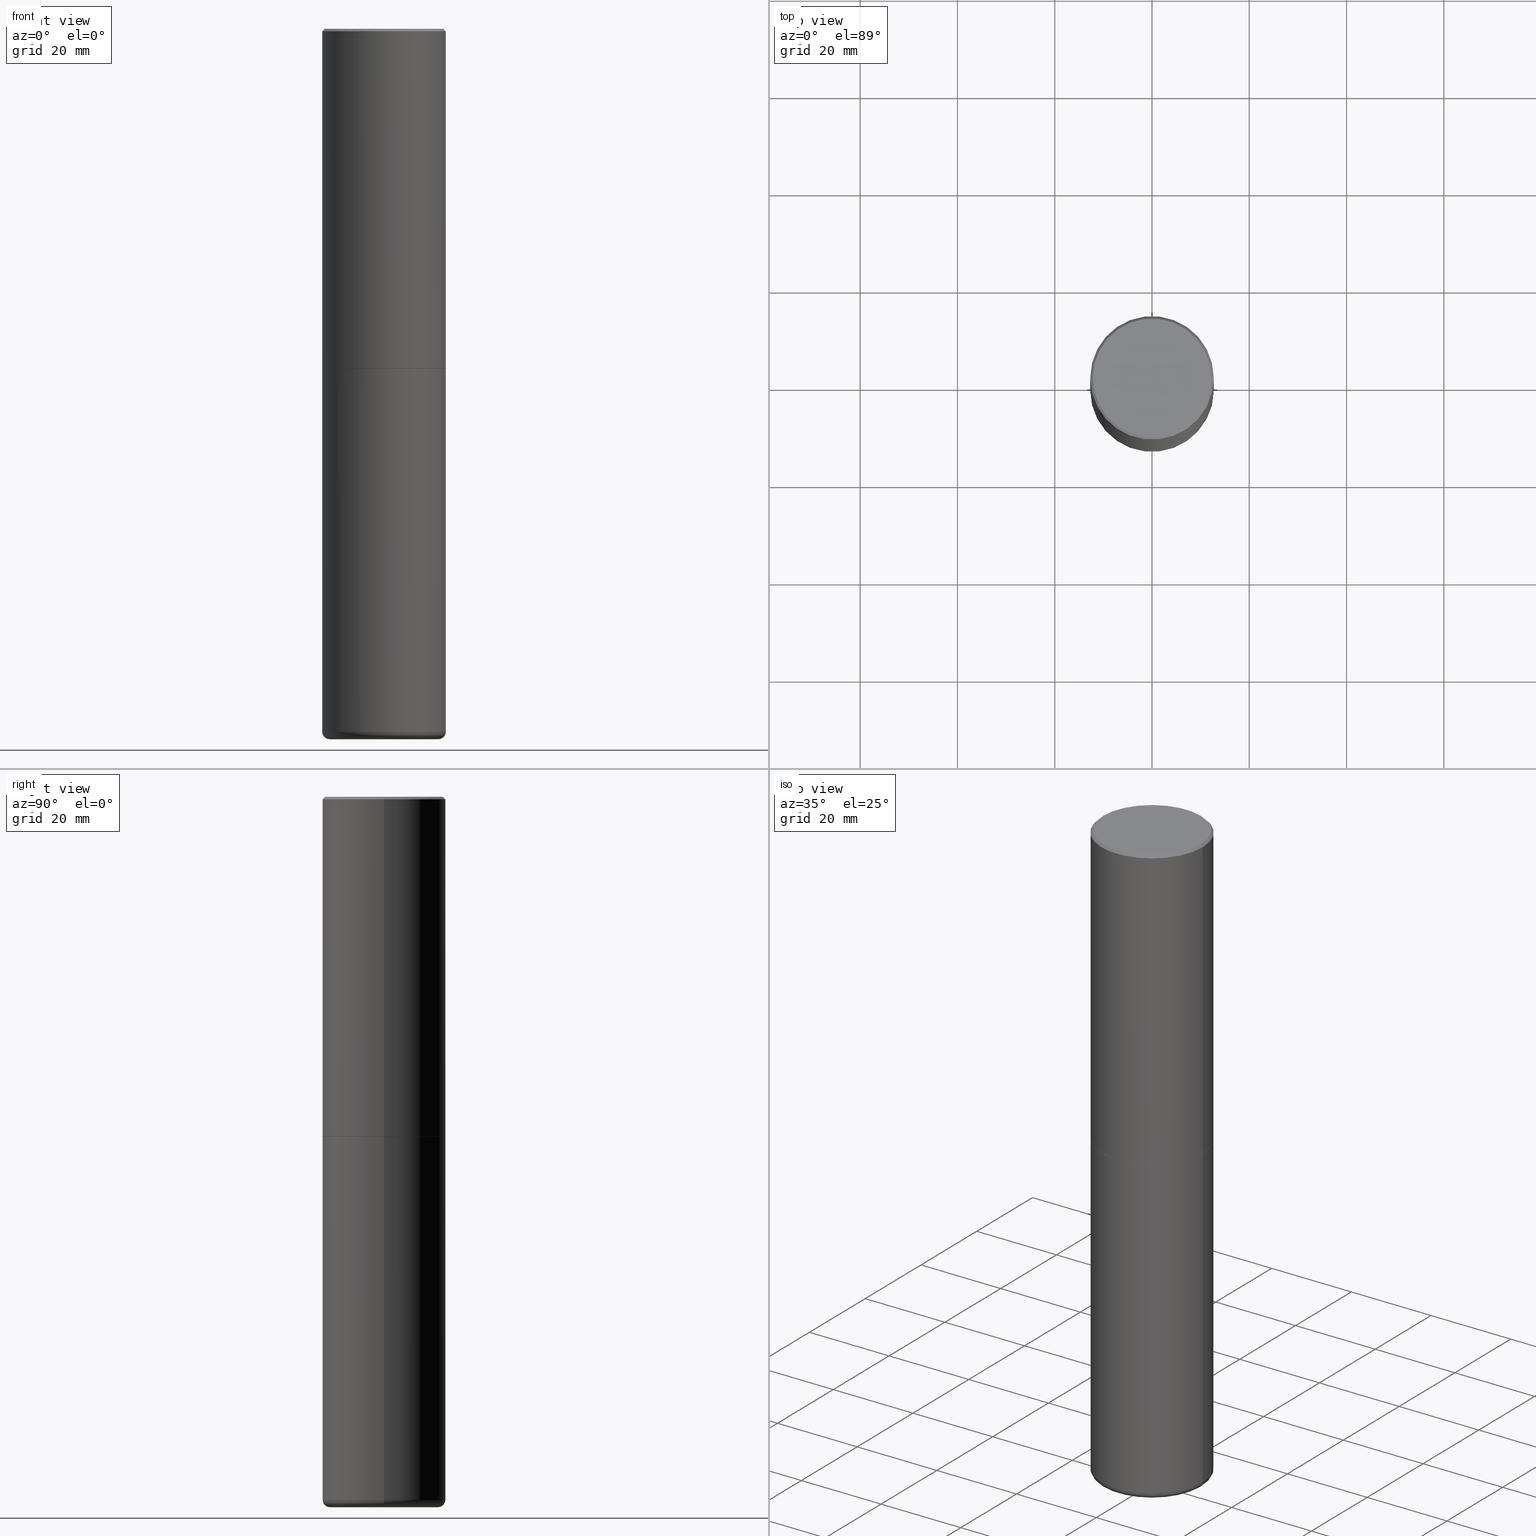
[diagram: canonical four-view strip — front | top / right | iso, engineering-drawing reading convention]
A machine part, canonical four-view strip (front | top / right | iso — engineering-drawing reading convention). The complete STEP part file that produces these views, byte-faithful:
ISO-10303-21;
HEADER;
FILE_DESCRIPTION (( 'STEP AP203' ),
    '1' );
FILE_NAME ('77318.STEP',
    '2024-03-06T17:03:56',
    ( '' ),
    ( '' ),
    'SwSTEP 2.0',
    'SolidWorks 2023',
    '' );
FILE_SCHEMA (( 'CONFIG_CONTROL_DESIGN' ));
ENDSEC;

DATA;
#1 = CALENDAR_DATE ( 2024, 6, 3 ) ;
#2 = EDGE_CURVE ( 'NONE', #50, #18, #135, .T. ) ;
#3 = ORIENTED_EDGE ( 'NONE', *, *, #163, .F. ) ;
#4 = AXIS2_PLACEMENT_3D ( 'NONE', #415, #126, #310 ) ;
#5 = ADVANCED_FACE ( 'NONE', ( #139 ), #133, .T. ) ;
#6 = LOCAL_TIME ( 12, 3, 56.00000000000000000, #253 ) ;
#7 = PERSON ( 'UNSPECIFIED', 'UNSPECIFIED', 'UNSPECIFIED', ('UNSPECIFIED'), ('UNSPECIFIED'), ('UNSPECIFIED') ) ;
#8 = FACE_OUTER_BOUND ( 'NONE', #181, .T. ) ;
#9 = CARTESIAN_POINT ( 'NONE',  ( -0.4799999999999999267, 3.386736898677839197E-15, 1.195183497227879609E-16 ) ) ;
#10 = AXIS2_PLACEMENT_3D ( 'NONE', #413, #316, #28 ) ;
#11 = EDGE_LOOP ( 'NONE', ( #364, #367, #240, #49 ) ) ;
#12 = CARTESIAN_POINT ( 'NONE',  ( 0.000000000000000000, 0.000000000000000000, 0.000000000000000000 ) ) ;
#13 = ORIENTED_EDGE ( 'NONE', *, *, #95, .T. ) ;
#14 = DIRECTION ( 'NONE',  ( -0.7071067811865457964, 2.468850131082238917E-15, -0.7071067811865492381 ) ) ;
#15 = ORIENTED_EDGE ( 'NONE', *, *, #85, .T. ) ;
#16 = CARTESIAN_POINT ( 'NONE',  ( 0.000000000000000000, 0.000000000000000000, 0.000000000000000000 ) ) ;
#17 = DIRECTION ( 'NONE',  ( 1.000000000000000000, -6.982962677686262766E-15, 0.000000000000000000 ) ) ;
#18 = VERTEX_POINT ( 'NONE', #209 ) ;
#19 = CONICAL_SURFACE ( 'NONE', #129, 0.5000000000000001110, 0.7853981633974458365 ) ;
#20 = CC_DESIGN_APPROVAL ( #177, ( #359 ) ) ;
#21 = CARTESIAN_POINT ( 'NONE',  ( 6.725039217009123399E-29, -9.601573681818648281E-15, -2.749999999999999556 ) ) ;
#22 = ORIENTED_EDGE ( 'NONE', *, *, #161, .T. ) ;
#23 = DIRECTION ( 'NONE',  ( 2.438088387897960049E-29, -3.491481338843145188E-15, -1.000000000000000000 ) ) ;
#24 = LINE ( 'NONE', #239, #345 ) ;
#25 = PLANE ( 'NONE',  #160 ) ;
#26 = CC_DESIGN_PERSON_AND_ORGANIZATION_ASSIGNMENT ( #416, #97, ( #359 ) ) ;
#27 = AXIS2_PLACEMENT_3D ( 'NONE', #70, #270, #401 ) ;
#28 = DIRECTION ( 'NONE',  ( 1.000000000000000000, -6.982962677686280121E-15, 0.000000000000000000 ) ) ;
#29 = CIRCLE ( 'NONE', #27, 0.4989999999999999991 ) ;
#30 = DATE_AND_TIME ( #1, #255 ) ;
#31 = DIMENSIONAL_EXPONENTS ( 1.000000000000000000, 0.000000000000000000, 0.000000000000000000, 0.000000000000000000, 0.000000000000000000, 0.000000000000000000, 0.000000000000000000 ) ;
#32 = DIRECTION ( 'NONE',  ( -2.445468806185136877E-29, 3.491481338843145188E-15, 1.000000000000000000 ) ) ;
#33 = CALENDAR_DATE ( 2024, 6, 3 ) ;
#34 = VERTEX_POINT ( 'NONE', #363 ) ;
#35 = COORDINATED_UNIVERSAL_TIME_OFFSET ( 5, 0, .BEHIND. ) ;
#36 = CC_DESIGN_PERSON_AND_ORGANIZATION_ASSIGNMENT ( #355, #125, ( #130 ) ) ;
#37 = AXIS2_PLACEMENT_3D ( 'NONE', #88, #216, #366 ) ;
#38 = EDGE_CURVE ( 'NONE', #377, #120, #109, .T. ) ;
#39 = EDGE_CURVE ( 'NONE', #120, #331, #227, .T. ) ;
#40 = PRODUCT ( '77318', '77318', '', ( #268 ) ) ;
#41 =( GEOMETRIC_REPRESENTATION_CONTEXT ( 3 ) GLOBAL_UNCERTAINTY_ASSIGNED_CONTEXT ( ( #361 ) ) GLOBAL_UNIT_ASSIGNED_CONTEXT ( ( #210, #183, #277 ) ) REPRESENTATION_CONTEXT ( 'NONE', 'WORKASPACE' ) );
#42 = CARTESIAN_POINT ( 'NONE',  ( -0.5000000000000003331, -1.281242234827830793E-15, -2.748999999999999666 ) ) ;
#43 = VERTEX_POINT ( 'NONE', #205 ) ;
#44 = CIRCLE ( 'NONE', #104, 0.4400000000000000022 ) ;
#45 = ORIENTED_EDGE ( 'NONE', *, *, #158, .T. ) ;
#46 = AXIS2_PLACEMENT_3D ( 'NONE', #16, #275, #131 ) ;
#47 = APPLICATION_CONTEXT ( 'configuration controlled 3d designs of mechanical parts and assemblies' ) ;
#48 = DIRECTION ( 'NONE',  ( 1.000000000000000000, -6.982962677686264344E-15, 4.883557194083111780E-29 ) ) ;
#49 = ORIENTED_EDGE ( 'NONE', *, *, #326, .F. ) ;
#50 = VERTEX_POINT ( 'NONE', #9 ) ;
#51 = APPROVAL_DATE_TIME ( #343, #228 ) ;
#52 = ORIENTED_EDGE ( 'NONE', *, *, #95, .F. ) ;
#53 = DIRECTION ( 'NONE',  ( 1.000000000000000000, -6.982962677686264344E-15, 4.883557194083111780E-29 ) ) ;
#54 = CARTESIAN_POINT ( 'NONE',  ( 6.725039217009123399E-29, -9.601573681818648281E-15, -2.749999999999999556 ) ) ;
#55 = ORIENTED_EDGE ( 'NONE', *, *, #163, .T. ) ;
#56 = DIRECTION ( 'NONE',  ( 1.000000000000000000, -6.982962677686269077E-15, 0.000000000000000000 ) ) ;
#57 = DIRECTION ( 'NONE',  ( 1.000000000000000000, -6.982962677686269077E-15, 0.000000000000000000 ) ) ;
#58 = CARTESIAN_POINT ( 'NONE',  ( -0.5000000000000001110, 3.421651712066270452E-15, -0.02000000000000010797 ) ) ;
#59 = DIRECTION ( 'NONE',  ( -1.000000000000000000, 6.982962677686265922E-15, 0.000000000000000000 ) ) ;
#60 = CONICAL_SURFACE ( 'NONE', #390, 0.4989999999999999991, 0.7853981633977213939 ) ;
#61 = CARTESIAN_POINT ( 'NONE',  ( 6.725039217009123399E-29, -9.601573681818648281E-15, -2.749999999999999556 ) ) ;
#62 = APPROVAL_DATE_TIME ( #30, #177 ) ;
#63 = FACE_OUTER_BOUND ( 'NONE', #138, .T. ) ;
#64 = CALENDAR_DATE ( 2024, 6, 3 ) ;
#65 = ADVANCED_FACE ( 'NONE', ( #164 ), #143, .T. ) ;
#66 = ADVANCED_FACE ( 'NONE', ( #8 ), #266, .T. ) ;
#67 = AXIS2_PLACEMENT_3D ( 'NONE', #412, #225, #87 ) ;
#68 = ADVANCED_FACE ( 'NONE', ( #178 ), #295, .T. ) ;
#69 = APPROVAL_PERSON_ORGANIZATION ( #318, #378, #321 ) ;
#70 = CARTESIAN_POINT ( 'NONE',  ( 6.725039217009123399E-29, -9.601573681818648281E-15, -2.749999999999999556 ) ) ;
#71 = VERTEX_POINT ( 'NONE', #171 ) ;
#72 = LINE ( 'NONE', #201, #195 ) ;
#73 = FACE_OUTER_BOUND ( 'NONE', #79, .T. ) ;
#74 = ORIENTED_EDGE ( 'NONE', *, *, #326, .T. ) ;
#75 = DIRECTION ( 'NONE',  ( -2.445468806185136597E-29, 3.491481338843145583E-15, 1.000000000000000000 ) ) ;
#76 = AXIS2_PLACEMENT_3D ( 'NONE', #398, #374, #339 ) ;
#77 = APPROVAL_STATUS ( 'not_yet_approved' ) ;
#78 = AXIS2_PLACEMENT_3D ( 'NONE', #121, #118, #383 ) ;
#79 = EDGE_LOOP ( 'NONE', ( #146, #192, #117, #242 ) ) ;
#80 = MANIFOLD_SOLID_BREP ( 'Body-Move/Copy2[2]', #360 ) ;
#81 = EDGE_LOOP ( 'NONE', ( #3, #311, #141, #52 ) ) ;
#82 = PERSON_AND_ORGANIZATION_ROLE ( 'design_owner' ) ;
#83 = ORIENTED_EDGE ( 'NONE', *, *, #397, .F. ) ;
#84 = CARTESIAN_POINT ( 'NONE',  ( 1.391471750719342616E-28, -1.986652881801749632E-14, -5.689999999999999503 ) ) ;
#85 = EDGE_CURVE ( 'NONE', #377, #282, #29, .T. ) ;
#86 = ORIENTED_EDGE ( 'NONE', *, *, #176, .T. ) ;
#87 = DIRECTION ( 'NONE',  ( 1.000000000000000000, -6.982962677686265922E-15, 0.000000000000000000 ) ) ;
#88 = CARTESIAN_POINT ( 'NONE',  ( 0.000000000000000000, 0.000000000000000000, 0.000000000000000000 ) ) ;
#89 = LOCAL_TIME ( 12, 3, 56.00000000000000000, #340 ) ;
#90 = DIRECTION ( 'NONE',  ( 1.000000000000000000, -6.982962677686266711E-15, 4.874852205035277589E-29 ) ) ;
#91 = DATE_AND_TIME ( #33, #6 ) ;
#92 = VERTEX_POINT ( 'NONE', #302 ) ;
#93 = CARTESIAN_POINT ( 'NONE',  ( -0.5000000000000002220, 3.552713678800502507E-15, -2.459467545127454012E-29 ) ) ;
#94 = DIRECTION ( 'NONE',  ( 1.000000000000000000, -6.982962677686266711E-15, 0.000000000000000000 ) ) ;
#95 = EDGE_CURVE ( 'NONE', #50, #278, #238, .T. ) ;
#96 = PLANE ( 'NONE',  #335 ) ;
#97 = PERSON_AND_ORGANIZATION_ROLE ( 'design_supplier' ) ;
#98 = VECTOR ( 'NONE', #233, 39.37007874015748143 ) ;
#99 = AXIS2_PLACEMENT_3D ( 'NONE', #144, #407, #399 ) ;
#100 = FACE_OUTER_BOUND ( 'NONE', #338, .T. ) ;
#101 = VECTOR ( 'NONE', #379, 39.37007874015748143 ) ;
#102 = CC_DESIGN_APPROVAL ( #228, ( #409 ) ) ;
#103 = DIRECTION ( 'NONE',  ( -2.445468806185136877E-29, 3.491481338843145188E-15, 1.000000000000000000 ) ) ;
#104 = AXIS2_PLACEMENT_3D ( 'NONE', #337, #271, #180 ) ;
#105 = CARTESIAN_POINT ( 'NONE',  ( -0.4989999999999999991, -6.055965430375748360E-15, -2.749999999999999556 ) ) ;
#106 = CARTESIAN_POINT ( 'NONE',  ( 1.406144563556453767E-28, -2.007601769834809252E-14, -5.750000000000000888 ) ) ;
#107 = EDGE_LOOP ( 'NONE', ( #149, #344, #13, #86 ) ) ;
#108 = ADVANCED_FACE ( 'NONE', ( #116 ), #328, .T. ) ;
#109 = LINE ( 'NONE', #105, #98 ) ;
#110 = PERSON_AND_ORGANIZATION ( #7, #394 ) ;
#111 = VERTEX_POINT ( 'NONE', #330 ) ;
#112 = DIRECTION ( 'NONE',  ( -2.445468806185136597E-29, 3.491481338843145583E-15, 1.000000000000000000 ) ) ;
#113 = CARTESIAN_POINT ( 'NONE',  ( 6.725039217009123399E-29, -9.601573681818648281E-15, -2.749999999999999556 ) ) ;
#114 = AXIS2_PLACEMENT_3D ( 'NONE', #61, #387, #94 ) ;
#115 = EDGE_LOOP ( 'NONE', ( #184, #333, #22, #200 ) ) ;
#116 = FACE_OUTER_BOUND ( 'NONE', #307, .T. ) ;
#117 = ORIENTED_EDGE ( 'NONE', *, *, #322, .F. ) ;
#118 = DIRECTION ( 'NONE',  ( -2.445468806185136597E-29, 3.491481338843145583E-15, 1.000000000000000000 ) ) ;
#119 = DIRECTION ( 'NONE',  ( 1.000000000000000000, -6.982962677686269077E-15, 0.000000000000000000 ) ) ;
#120 = VERTEX_POINT ( 'NONE', #42 ) ;
#121 = CARTESIAN_POINT ( 'NONE',  ( 4.890937612370299433E-31, -6.982962677686328587E-17, -0.02000000000000010797 ) ) ;
#122 = DATE_TIME_ROLE ( 'classification_date' ) ;
#123 = FACE_OUTER_BOUND ( 'NONE', #269, .T. ) ;
#124 = DIRECTION ( 'NONE',  ( -1.000000000000000000, 6.982962677686265922E-15, 0.000000000000000000 ) ) ;
#125 = PERSON_AND_ORGANIZATION_ROLE ( 'classification_officer' ) ;
#126 = DIRECTION ( 'NONE',  ( -2.445468806185136597E-29, 3.491481338843145583E-15, 1.000000000000000000 ) ) ;
#127 = AXIS2_PLACEMENT_3D ( 'NONE', #262, #258, #142 ) ;
#128 = PRODUCT_RELATED_PRODUCT_CATEGORY ( 'detail', '', ( #40 ) ) ;
#129 = AXIS2_PLACEMENT_3D ( 'NONE', #150, #248, #59 ) ;
#130 = SECURITY_CLASSIFICATION ( '', '', #382 ) ;
#131 = DIRECTION ( 'NONE',  ( 1.000000000000000000, -6.982962677686266711E-15, 4.876176775795935793E-29 ) ) ;
#132 = CIRCLE ( 'NONE', #145, 0.4400000000000000022 ) ;
#133 = CYLINDRICAL_SURFACE ( 'NONE', #46, 0.5000000000000002220 ) ;
#134 = ADVANCED_FACE ( 'NONE', ( #298 ), #371, .T. ) ;
#135 = CIRCLE ( 'NONE', #76, 0.4799999999999999267 ) ;
#136 = EDGE_LOOP ( 'NONE', ( #272, #251, #188, #173 ) ) ;
#137 = ORIENTED_EDGE ( 'NONE', *, *, #325, .T. ) ;
#138 = EDGE_LOOP ( 'NONE', ( #175, #15, #45, #235 ) ) ;
#139 = FACE_OUTER_BOUND ( 'NONE', #115, .T. ) ;
#140 = CALENDAR_DATE ( 2024, 6, 3 ) ;
#141 = ORIENTED_EDGE ( 'NONE', *, *, #196, .T. ) ;
#142 = DIRECTION ( 'NONE',  ( 1.000000000000000000, -6.982962677686266711E-15, 0.000000000000000000 ) ) ;
#143 = CYLINDRICAL_SURFACE ( 'NONE', #224, 0.5000000000000000000 ) ;
#144 = CARTESIAN_POINT ( 'NONE',  ( 0.000000000000000000, 0.000000000000000000, 0.000000000000000000 ) ) ;
#145 = AXIS2_PLACEMENT_3D ( 'NONE', #106, #303, #17 ) ;
#146 = ORIENTED_EDGE ( 'NONE', *, *, #392, .T. ) ;
#147 = DIRECTION ( 'NONE',  ( -2.445468806185136597E-29, 3.491481338843145583E-15, 1.000000000000000000 ) ) ;
#148 = CARTESIAN_POINT ( 'NONE',  ( -0.4989999999999999991, -6.050666976027525169E-15, -2.749999999999999556 ) ) ;
#149 = ORIENTED_EDGE ( 'NONE', *, *, #393, .F. ) ;
#150 = CARTESIAN_POINT ( 'NONE',  ( 4.890937612370299433E-31, -6.982962677686328587E-17, -0.02000000000000010797 ) ) ;
#151 = DIRECTION ( 'NONE',  ( -2.445468806185136597E-29, 3.491481338843145583E-15, 1.000000000000000000 ) ) ;
#152 = CARTESIAN_POINT ( 'NONE',  ( 0.4989999999999999991, -1.308607205798409720E-14, -2.749999999999999556 ) ) ;
#153 = APPROVAL_DATE_TIME ( #389, #378 ) ;
#154 = AXIS2_PLACEMENT_3D ( 'NONE', #352, #147, #90 ) ;
#155 = CARTESIAN_POINT ( 'NONE',  ( 1.391471750719342616E-28, -1.986652881801749632E-14, -5.689999999999999503 ) ) ;
#156 = DIRECTION ( 'NONE',  ( 0.7071067811867406405, -2.468850131084279700E-15, 0.7071067811863543939 ) ) ;
#157 = DATE_AND_TIME ( #159, #206 ) ;
#158 = EDGE_CURVE ( 'NONE', #282, #331, #72, .T. ) ;
#159 = CALENDAR_DATE ( 2024, 6, 3 ) ;
#160 = AXIS2_PLACEMENT_3D ( 'NONE', #246, #381, #217 ) ;
#161 = EDGE_CURVE ( 'NONE', #331, #211, #190, .T. ) ;
#162 = CC_DESIGN_SECURITY_CLASSIFICATION ( #130, ( #359 ) ) ;
#163 = EDGE_CURVE ( 'NONE', #18, #50, #237, .T. ) ;
#164 = FACE_OUTER_BOUND ( 'NONE', #11, .T. ) ;
#165 = ORIENTED_EDGE ( 'NONE', *, *, #191, .F. ) ;
#166 = CIRCLE ( 'NONE', #229, 0.4989999999999999991 ) ;
#167 = DIRECTION ( 'NONE',  ( 2.438088387897960049E-29, -3.491481338843145188E-15, -1.000000000000000000 ) ) ;
#168 = CYLINDRICAL_SURFACE ( 'NONE', #99, 0.5000000000000000000 ) ;
#169 = ORIENTED_EDGE ( 'NONE', *, *, #356, .T. ) ;
#170 = CC_DESIGN_DATE_AND_TIME_ASSIGNMENT ( #157, #122, ( #130 ) ) ;
#171 = CARTESIAN_POINT ( 'NONE',  ( 0.4400000000000000022, -2.314852127653004609E-14, -5.750000000000000888 ) ) ;
#172 = DIRECTION ( 'NONE',  ( 0.7071067811865457964, -7.319954787623249734E-15, -0.7071067811865492381 ) ) ;
#173 = ORIENTED_EDGE ( 'NONE', *, *, #289, .F. ) ;
#174 = PERSON_AND_ORGANIZATION ( #7, #394 ) ;
#175 = ORIENTED_EDGE ( 'NONE', *, *, #38, .F. ) ;
#176 = EDGE_CURVE ( 'NONE', #278, #211, #215, .T. ) ;
#177 = APPROVAL ( #218, 'UNSPECIFIED' ) ;
#178 = FACE_OUTER_BOUND ( 'NONE', #136, .T. ) ;
#179 = CIRCLE ( 'NONE', #189, 0.4999999999999999445 ) ;
#180 = DIRECTION ( 'NONE',  ( 1.000000000000000000, -6.982962677686262766E-15, 0.000000000000000000 ) ) ;
#181 = EDGE_LOOP ( 'NONE', ( #208, #137, #408, #204 ) ) ;
#182 = PLANE ( 'NONE',  #247 ) ;
#183 =( NAMED_UNIT ( * ) PLANE_ANGLE_UNIT ( ) SI_UNIT ( $, .RADIAN. ) );
#184 = ORIENTED_EDGE ( 'NONE', *, *, #325, .F. ) ;
#185 = CARTESIAN_POINT ( 'NONE',  ( 0.5000000000000001110, -3.500078625662629868E-15, -0.02000000000000010797 ) ) ;
#186 = FACE_OUTER_BOUND ( 'NONE', #107, .T. ) ;
#187 = APPROVAL_STATUS ( 'not_yet_approved' ) ;
#188 = ORIENTED_EDGE ( 'NONE', *, *, #356, .F. ) ;
#189 = AXIS2_PLACEMENT_3D ( 'NONE', #155, #385, #320 ) ;
#190 = LINE ( 'NONE', #252, #274 ) ;
#191 = EDGE_CURVE ( 'NONE', #111, #92, #410, .T. ) ;
#192 = ORIENTED_EDGE ( 'NONE', *, *, #38, .T. ) ;
#193 = ADVANCED_FACE ( 'NONE', ( #100 ), #96, .F. ) ;
#194 = ADVANCED_BREP_SHAPE_REPRESENTATION ( '77318', ( #334, #80, #37 ), #41 ) ;
#195 = VECTOR ( 'NONE', #156, 39.37007874015748143 ) ;
#196 = EDGE_CURVE ( 'NONE', #211, #278, #317, .T. ) ;
#197 = ADVANCED_FACE ( 'NONE', ( #63 ), #60, .T. ) ;
#198 = VECTOR ( 'NONE', #32, 39.37007874015748143 ) ;
#199 = CARTESIAN_POINT ( 'NONE',  ( -0.5000000000000001110, 3.421651712066270452E-15, -0.02000000000000010797 ) ) ;
#200 = ORIENTED_EDGE ( 'NONE', *, *, #176, .F. ) ;
#201 = CARTESIAN_POINT ( 'NONE',  ( 0.4989999999999999991, -1.308607205798409720E-14, -2.749999999999999556 ) ) ;
#202 = CC_DESIGN_PERSON_AND_ORGANIZATION_ASSIGNMENT ( #285, #323, ( #359 ) ) ;
#203 = DIRECTION ( 'NONE',  ( -2.445468806185136597E-29, 3.491481338843145583E-15, 1.000000000000000000 ) ) ;
#204 = ORIENTED_EDGE ( 'NONE', *, *, #161, .F. ) ;
#205 = CARTESIAN_POINT ( 'NONE',  ( -0.5000000000000000000, -1.118133757111757137E-14, -2.749999999999999556 ) ) ;
#206 = LOCAL_TIME ( 12, 3, 56.00000000000000000, #35 ) ;
#207 = APPROVAL_ROLE ( '' ) ;
#208 = ORIENTED_EDGE ( 'NONE', *, *, #322, .T. ) ;
#209 = CARTESIAN_POINT ( 'NONE',  ( 0.4799999999999999267, -3.396558832296482099E-15, 1.195183497228351200E-16 ) ) ;
#210 =( CONVERSION_BASED_UNIT ( 'INCH', #372 ) LENGTH_UNIT ( ) NAMED_UNIT ( #31 ) );
#211 = VERTEX_POINT ( 'NONE', #185 ) ;
#212 = DIRECTION ( 'NONE',  ( 1.000000000000000000, -6.982962677686266711E-15, 4.876176775795935793E-29 ) ) ;
#213 = ORIENTED_EDGE ( 'NONE', *, *, #304, .F. ) ;
#214 = CARTESIAN_POINT ( 'NONE',  ( 6.725039217009123399E-29, -9.601573681818648281E-15, -2.749999999999999556 ) ) ;
#215 = CIRCLE ( 'NONE', #78, 0.5000000000000001110 ) ;
#216 = DIRECTION ( 'NONE',  ( 0.000000000000000000, 0.000000000000000000, 1.000000000000000000 ) ) ;
#217 = DIRECTION ( 'NONE',  ( -1.000000000000000000, 6.982962677686265922E-15, -4.876176775795935793E-29 ) ) ;
#218 = APPROVAL_STATUS ( 'not_yet_approved' ) ;
#219 = CARTESIAN_POINT ( 'NONE',  ( 0.5000000000000000000, -3.491481338843133355E-15, 2.438088387897967896E-29 ) ) ;
#220 = PERSON_AND_ORGANIZATION ( #7, #394 ) ;
#221 = FACE_OUTER_BOUND ( 'NONE', #369, .T. ) ;
#222 = PERSON_AND_ORGANIZATION_ROLE ( 'creator' ) ;
#223 = EDGE_CURVE ( 'NONE', #34, #43, #284, .T. ) ;
#224 = AXIS2_PLACEMENT_3D ( 'NONE', #332, #112, #212 ) ;
#225 = DIRECTION ( 'NONE',  ( -2.445468806185136597E-29, 3.491481338843145583E-15, 1.000000000000000000 ) ) ;
#226 = AXIS2_PLACEMENT_3D ( 'NONE', #306, #151, #402 ) ;
#227 = CIRCLE ( 'NONE', #236, 0.5000000000000003331 ) ;
#228 = APPROVAL ( #77, 'UNSPECIFIED' ) ;
#229 = AXIS2_PLACEMENT_3D ( 'NONE', #113, #280, #57 ) ;
#230 = DIRECTION ( 'NONE',  ( -2.445468806185136597E-29, 3.491481338843145583E-15, 1.000000000000000000 ) ) ;
#231 = CARTESIAN_POINT ( 'NONE',  ( 4.089694968291764333E-29, -3.435613221068401065E-14, -5.750000000000000888 ) ) ;
#232 = EDGE_LOOP ( 'NONE', ( #403, #83 ) ) ;
#233 = DIRECTION ( 'NONE',  ( -0.7071067811867406405, 7.493145998871051513E-15, 0.7071067811863543939 ) ) ;
#234 = APPLICATION_PROTOCOL_DEFINITION ( 'international standard', 'config_control_design', 1994, #357 ) ;
#235 = ORIENTED_EDGE ( 'NONE', *, *, #39, .F. ) ;
#236 = AXIS2_PLACEMENT_3D ( 'NONE', #264, #230, #336 ) ;
#237 = CIRCLE ( 'NONE', #154, 0.4799999999999999267 ) ;
#238 = LINE ( 'NONE', #199, #260 ) ;
#239 = CARTESIAN_POINT ( 'NONE',  ( 0.5000000000000001110, -3.500078625662629868E-15, -0.02000000000000010797 ) ) ;
#240 = ORIENTED_EDGE ( 'NONE', *, *, #191, .T. ) ;
#241 = CARTESIAN_POINT ( 'NONE',  ( 1.391471750719342616E-28, -1.986652881801749632E-14, -5.689999999999999503 ) ) ;
#242 = ORIENTED_EDGE ( 'NONE', *, *, #158, .F. ) ;
#243 = DIRECTION ( 'NONE',  ( -2.438088387897960049E-29, 3.491481338843145188E-15, 1.000000000000000000 ) ) ;
#244 =( LENGTH_UNIT ( ) NAMED_UNIT ( * ) SI_UNIT ( $, .METRE. ) );
#245 = ADVANCED_FACE ( 'NONE', ( #123 ), #182, .F. ) ;
#246 = CARTESIAN_POINT ( 'NONE',  ( 3.351822085289407153E-15, 0.4799999999999999267, -1.616151867783303914E-15 ) ) ;
#247 = AXIS2_PLACEMENT_3D ( 'NONE', #312, #23, #350 ) ;
#248 = DIRECTION ( 'NONE',  ( 2.445468806185136597E-29, -3.491481338843145583E-15, -1.000000000000000000 ) ) ;
#249 = APPROVAL_ROLE ( '' ) ;
#250 = DIRECTION ( 'NONE',  ( -1.000000000000000000, 7.105427357601001859E-15, 0.000000000000000000 ) ) ;
#251 = ORIENTED_EDGE ( 'NONE', *, *, #283, .T. ) ;
#252 = CARTESIAN_POINT ( 'NONE',  ( 0.5000000000000002220, -3.491481338843134933E-15, 2.438088387897969017E-29 ) ) ;
#253 = COORDINATED_UNIVERSAL_TIME_OFFSET ( 5, 0, .BEHIND. ) ;
#254 = VECTOR ( 'NONE', #103, 39.37007874015748143 ) ;
#255 = LOCAL_TIME ( 12, 3, 56.00000000000000000, #351 ) ;
#256 = CC_DESIGN_PERSON_AND_ORGANIZATION_ASSIGNMENT ( #174, #222, ( #409 ) ) ;
#257 = CC_DESIGN_PERSON_AND_ORGANIZATION_ASSIGNMENT ( #110, #82, ( #40 ) ) ;
#258 = DIRECTION ( 'NONE',  ( -2.445468806185136597E-29, 3.491481338843145583E-15, 1.000000000000000000 ) ) ;
#259 = ADVANCED_FACE ( 'NONE', ( #314 ), #19, .T. ) ;
#260 = VECTOR ( 'NONE', #14, 39.37007874015748143 ) ;
#261 = ADVANCED_FACE ( 'NONE', ( #221 ), #25, .F. ) ;
#262 = CARTESIAN_POINT ( 'NONE',  ( 6.725039217009123399E-29, -9.601573681818648281E-15, -2.749999999999999556 ) ) ;
#263 = ADVANCED_FACE ( 'NONE', ( #186 ), #308, .T. ) ;
#264 = CARTESIAN_POINT ( 'NONE',  ( 6.722593748202938917E-29, -9.598082200479805274E-15, -2.748999999999999666 ) ) ;
#265 = AXIS2_PLACEMENT_3D ( 'NONE', #231, #167, #365 ) ;
#266 = CYLINDRICAL_SURFACE ( 'NONE', #404, 0.5000000000000002220 ) ;
#267 = ORIENTED_EDGE ( 'NONE', *, *, #397, .T. ) ;
#268 = MECHANICAL_CONTEXT ( 'NONE', #47, 'mechanical' ) ;
#269 = EDGE_LOOP ( 'NONE', ( #373, #74 ) ) ;
#270 = DIRECTION ( 'NONE',  ( -2.445468806185136597E-29, 3.491481338843145583E-15, 1.000000000000000000 ) ) ;
#271 = DIRECTION ( 'NONE',  ( -2.445468806185136597E-29, 3.491481338843145583E-15, 1.000000000000000000 ) ) ;
#272 = ORIENTED_EDGE ( 'NONE', *, *, #384, .T. ) ;
#273 = EDGE_CURVE ( 'NONE', #92, #43, #296, .T. ) ;
#274 = VECTOR ( 'NONE', #279, 39.37007874015748143 ) ;
#275 = DIRECTION ( 'NONE',  ( -2.445468806185136597E-29, 3.491481338843145583E-15, 1.000000000000000000 ) ) ;
#276 = CC_DESIGN_DATE_AND_TIME_ASSIGNMENT ( #91, #327, ( #409 ) ) ;
#277 =( NAMED_UNIT ( * ) SI_UNIT ( $, .STERADIAN. ) SOLID_ANGLE_UNIT ( ) );
#278 = VERTEX_POINT ( 'NONE', #58 ) ;
#279 = DIRECTION ( 'NONE',  ( -2.445468806185136877E-29, 3.491481338843145188E-15, 1.000000000000000000 ) ) ;
#280 = DIRECTION ( 'NONE',  ( -2.445468806185136597E-29, 3.491481338843145583E-15, 1.000000000000000000 ) ) ;
#281 = DESIGN_CONTEXT ( 'detailed design', #357, 'design' ) ;
#282 = VERTEX_POINT ( 'NONE', #152 ) ;
#283 = EDGE_CURVE ( 'NONE', #341, #34, #370, .T. ) ;
#284 = LINE ( 'NONE', #414, #198 ) ;
#285 = PERSON_AND_ORGANIZATION ( #7, #394 ) ;
#286 = DIRECTION ( 'NONE',  ( 7.105427357601001859E-15, 1.000000000000000000, -3.491481338843145583E-15 ) ) ;
#287 = AXIS2_PLACEMENT_3D ( 'NONE', #241, #395, #48 ) ;
#288 = DIRECTION ( 'NONE',  ( 1.000000000000000000, -6.982962677686265922E-15, 4.876176775795935793E-29 ) ) ;
#289 = EDGE_CURVE ( 'NONE', #71, #111, #380, .T. ) ;
#290 = CARTESIAN_POINT ( 'NONE',  ( 4.890937612370299433E-31, -6.982962677686328587E-17, -0.02000000000000010797 ) ) ;
#291 = COORDINATED_UNIVERSAL_TIME_OFFSET ( 5, 0, .BEHIND. ) ;
#292 = SHAPE_DEFINITION_REPRESENTATION ( #297, #194 ) ;
#293 = AXIS2_PLACEMENT_3D ( 'NONE', #84, #342, #53 ) ;
#294 = ORIENTED_EDGE ( 'NONE', *, *, #2, .T. ) ;
#295 = TOROIDAL_SURFACE ( 'NONE', #287, 0.4400000000000000022, 0.06000000000000045575 ) ;
#296 = CIRCLE ( 'NONE', #114, 0.5000000000000000000 ) ;
#297 = PRODUCT_DEFINITION_SHAPE ( 'NONE', 'NONE',  #409 ) ;
#298 = FACE_OUTER_BOUND ( 'NONE', #232, .T. ) ;
#299 = ORIENTED_EDGE ( 'NONE', *, *, #85, .F. ) ;
#300 = CIRCLE ( 'NONE', #127, 0.5000000000000000000 ) ;
#301 = ORIENTED_EDGE ( 'NONE', *, *, #283, .F. ) ;
#302 = CARTESIAN_POINT ( 'NONE',  ( 0.5000000000000000000, -1.309305502066178164E-14, -2.749999999999999556 ) ) ;
#303 = DIRECTION ( 'NONE',  ( -2.445468806185136597E-29, 3.491481338843145583E-15, 1.000000000000000000 ) ) ;
#304 = EDGE_CURVE ( 'NONE', #34, #111, #179, .T. ) ;
#305 = ORIENTED_EDGE ( 'NONE', *, *, #273, .F. ) ;
#306 = CARTESIAN_POINT ( 'NONE',  ( 1.391471750719342616E-28, -1.986652881801749632E-14, -5.689999999999999503 ) ) ;
#307 = EDGE_LOOP ( 'NONE', ( #301, #267, #396, #213 ) ) ;
#308 = CONICAL_SURFACE ( 'NONE', #388, 0.5000000000000001110, 0.7853981633974458365 ) ;
#309 = LOCAL_TIME ( 12, 3, 56.00000000000000000, #291 ) ;
#310 = DIRECTION ( 'NONE',  ( 1.000000000000000000, -6.982962677686265922E-15, 0.000000000000000000 ) ) ;
#311 = ORIENTED_EDGE ( 'NONE', *, *, #393, .T. ) ;
#312 = CARTESIAN_POINT ( 'NONE',  ( 6.725039217009123399E-29, -9.601573681818648281E-15, -2.749999999999999556 ) ) ;
#313 = FACE_OUTER_BOUND ( 'NONE', #324, .T. ) ;
#314 = FACE_OUTER_BOUND ( 'NONE', #81, .T. ) ;
#315 = CARTESIAN_POINT ( 'NONE',  ( 0.5000000000000003331, -1.308956353932294179E-14, -2.748999999999999666 ) ) ;
#316 = DIRECTION ( 'NONE',  ( -6.982962677686266711E-15, -1.000000000000000000, 3.491481338843145583E-15 ) ) ;
#317 = CIRCLE ( 'NONE', #67, 0.5000000000000001110 ) ;
#318 = PERSON_AND_ORGANIZATION ( #7, #394 ) ;
#319 = APPROVAL_PERSON_ORGANIZATION ( #220, #177, #249 ) ;
#320 = DIRECTION ( 'NONE',  ( 1.000000000000000000, -6.982962677686263555E-15, 0.000000000000000000 ) ) ;
#321 = APPROVAL_ROLE ( '' ) ;
#322 = EDGE_CURVE ( 'NONE', #331, #120, #353, .T. ) ;
#323 = PERSON_AND_ORGANIZATION_ROLE ( 'creator' ) ;
#324 = EDGE_LOOP ( 'NONE', ( #169, #400, #305, #165 ) ) ;
#325 = EDGE_CURVE ( 'NONE', #120, #278, #329, .T. ) ;
#326 = EDGE_CURVE ( 'NONE', #43, #92, #300, .T. ) ;
#327 = DATE_TIME_ROLE ( 'creation_date' ) ;
#328 = TOROIDAL_SURFACE ( 'NONE', #293, 0.4400000000000000022, 0.06000000000000045575 ) ;
#329 = LINE ( 'NONE', #93, #254 ) ;
#330 = CARTESIAN_POINT ( 'NONE',  ( 0.5000000000000002220, -2.335801015686062967E-14, -5.689999999999999503 ) ) ;
#331 = VERTEX_POINT ( 'NONE', #315 ) ;
#332 = CARTESIAN_POINT ( 'NONE',  ( 0.000000000000000000, 0.000000000000000000, 0.000000000000000000 ) ) ;
#333 = ORIENTED_EDGE ( 'NONE', *, *, #39, .T. ) ;
#334 = MANIFOLD_SOLID_BREP ( 'Body-Move/Copy2[1]', #391 ) ;
#335 = AXIS2_PLACEMENT_3D ( 'NONE', #21, #243, #288 ) ;
#336 = DIRECTION ( 'NONE',  ( 1.000000000000000000, -6.982962677686265922E-15, 0.000000000000000000 ) ) ;
#337 = CARTESIAN_POINT ( 'NONE',  ( 1.406144563556453767E-28, -2.007601769834809252E-14, -5.750000000000000888 ) ) ;
#338 = EDGE_LOOP ( 'NONE', ( #411, #299 ) ) ;
#339 = DIRECTION ( 'NONE',  ( 1.000000000000000000, -6.982962677686266711E-15, 4.874852205035277589E-29 ) ) ;
#340 = COORDINATED_UNIVERSAL_TIME_OFFSET ( 5, 0, .BEHIND. ) ;
#341 = VERTEX_POINT ( 'NONE', #375 ) ;
#342 = DIRECTION ( 'NONE',  ( -2.445468806185136597E-29, 3.491481338843145583E-15, 1.000000000000000000 ) ) ;
#343 = DATE_AND_TIME ( #140, #89 ) ;
#344 = ORIENTED_EDGE ( 'NONE', *, *, #2, .F. ) ;
#345 = VECTOR ( 'NONE', #172, 39.37007874015748143 ) ;
#346 = DIRECTION ( 'NONE',  ( -2.445468806185136597E-29, 3.491481338843145583E-15, 1.000000000000000000 ) ) ;
#347 = APPLICATION_PROTOCOL_DEFINITION ( 'international standard', 'config_control_design', 1994, #47 ) ;
#348 = DIRECTION ( 'NONE',  ( 2.445468806185136597E-29, -3.491481338843145583E-15, -1.000000000000000000 ) ) ;
#349 = ADVANCED_FACE ( 'NONE', ( #313 ), #168, .T. ) ;
#350 = DIRECTION ( 'NONE',  ( -1.000000000000000000, 6.982962677686265922E-15, -4.876176775795935793E-29 ) ) ;
#351 = COORDINATED_UNIVERSAL_TIME_OFFSET ( 5, 0, .BEHIND. ) ;
#352 = CARTESIAN_POINT ( 'NONE',  ( -2.922783960138615261E-45, 4.172960877065252270E-31, 1.195183497228115035E-16 ) ) ;
#353 = CIRCLE ( 'NONE', #4, 0.5000000000000003331 ) ;
#354 = CARTESIAN_POINT ( 'NONE',  ( -0.4400000000000000022, -1.674014078067305588E-14, -5.689999999999999503 ) ) ;
#355 = PERSON_AND_ORGANIZATION ( #7, #394 ) ;
#356 = EDGE_CURVE ( 'NONE', #111, #34, #417, .T. ) ;
#357 = APPLICATION_CONTEXT ( 'configuration controlled 3d designs of mechanical parts and assemblies' ) ;
#358 = CONICAL_SURFACE ( 'NONE', #405, 0.4989999999999999991, 0.7853981633977213939 ) ;
#359 = PRODUCT_DEFINITION_FORMATION_WITH_SPECIFIED_SOURCE ( 'ANY', '', #40, .NOT_KNOWN. ) ;
#360 = CLOSED_SHELL ( 'NONE', ( #376, #66, #259, #263, #5, #197, #193, #261 ) ) ;
#361 = UNCERTAINTY_MEASURE_WITH_UNIT (LENGTH_MEASURE( 1.000000000000000082E-05 ), #210, 'distance_accuracy_value', 'NONE');
#362 = AXIS2_PLACEMENT_3D ( 'NONE', #354, #286, #250 ) ;
#363 = CARTESIAN_POINT ( 'NONE',  ( -0.5000000000000002220, -1.631381513921699223E-14, -5.689999999999999503 ) ) ;
#364 = ORIENTED_EDGE ( 'NONE', *, *, #223, .F. ) ;
#365 = DIRECTION ( 'NONE',  ( -1.000000000000000000, 6.982962677686265922E-15, -4.876176775795935793E-29 ) ) ;
#366 = DIRECTION ( 'NONE',  ( 1.000000000000000000, 0.000000000000000000, 0.000000000000000000 ) ) ;
#367 = ORIENTED_EDGE ( 'NONE', *, *, #304, .T. ) ;
#368 = PERSON_AND_ORGANIZATION ( #7, #394 ) ;
#369 = EDGE_LOOP ( 'NONE', ( #294, #55 ) ) ;
#370 = CIRCLE ( 'NONE', #362, 0.06000000000000045575 ) ;
#371 = PLANE ( 'NONE',  #265 ) ;
#372 = LENGTH_MEASURE_WITH_UNIT ( LENGTH_MEASURE( 0.02539999999999999897 ), #244 );
#373 = ORIENTED_EDGE ( 'NONE', *, *, #273, .T. ) ;
#374 = DIRECTION ( 'NONE',  ( -2.445468806185136597E-29, 3.491481338843145583E-15, 1.000000000000000000 ) ) ;
#375 = CARTESIAN_POINT ( 'NONE',  ( -0.4400000000000000022, -1.663172240011032058E-14, -5.750000000000000888 ) ) ;
#376 = ADVANCED_FACE ( 'NONE', ( #73 ), #358, .T. ) ;
#377 = VERTEX_POINT ( 'NONE', #148 ) ;
#378 = APPROVAL ( #187, 'UNSPECIFIED' ) ;
#379 = DIRECTION ( 'NONE',  ( -2.445468806185136877E-29, 3.491481338843145188E-15, 1.000000000000000000 ) ) ;
#380 = CIRCLE ( 'NONE', #10, 0.06000000000000045575 ) ;
#381 = DIRECTION ( 'NONE',  ( 2.438088387897960049E-29, -3.491481338843145188E-15, -1.000000000000000000 ) ) ;
#382 = SECURITY_CLASSIFICATION_LEVEL ( 'unclassified' ) ;
#383 = DIRECTION ( 'NONE',  ( 1.000000000000000000, -6.982962677686265922E-15, 0.000000000000000000 ) ) ;
#384 = EDGE_CURVE ( 'NONE', #71, #341, #132, .T. ) ;
#385 = DIRECTION ( 'NONE',  ( -2.445468806185136597E-29, 3.491481338843145583E-15, 1.000000000000000000 ) ) ;
#386 = APPROVAL_PERSON_ORGANIZATION ( #368, #228, #207 ) ;
#387 = DIRECTION ( 'NONE',  ( -2.445468806185136597E-29, 3.491481338843145583E-15, 1.000000000000000000 ) ) ;
#388 = AXIS2_PLACEMENT_3D ( 'NONE', #290, #348, #124 ) ;
#389 = DATE_AND_TIME ( #64, #309 ) ;
#390 = AXIS2_PLACEMENT_3D ( 'NONE', #214, #346, #56 ) ;
#391 = CLOSED_SHELL ( 'NONE', ( #349, #68, #245, #65, #108, #134 ) ) ;
#392 = EDGE_CURVE ( 'NONE', #282, #377, #166, .T. ) ;
#393 = EDGE_CURVE ( 'NONE', #18, #211, #24, .T. ) ;
#394 = ORGANIZATION ( 'UNSPECIFIED', 'UNSPECIFIED', '' ) ;
#395 = DIRECTION ( 'NONE',  ( -2.445468806185136597E-29, 3.491481338843145583E-15, 1.000000000000000000 ) ) ;
#396 = ORIENTED_EDGE ( 'NONE', *, *, #289, .T. ) ;
#397 = EDGE_CURVE ( 'NONE', #341, #71, #44, .T. ) ;
#398 = CARTESIAN_POINT ( 'NONE',  ( -2.922783960138615261E-45, 4.172960877065252270E-31, 1.195183497228115035E-16 ) ) ;
#399 = DIRECTION ( 'NONE',  ( 1.000000000000000000, -6.982962677686266711E-15, 4.876176775795935793E-29 ) ) ;
#400 = ORIENTED_EDGE ( 'NONE', *, *, #223, .T. ) ;
#401 = DIRECTION ( 'NONE',  ( 1.000000000000000000, -6.982962677686269077E-15, 0.000000000000000000 ) ) ;
#402 = DIRECTION ( 'NONE',  ( 1.000000000000000000, -6.982962677686263555E-15, 0.000000000000000000 ) ) ;
#403 = ORIENTED_EDGE ( 'NONE', *, *, #384, .F. ) ;
#404 = AXIS2_PLACEMENT_3D ( 'NONE', #12, #75, #406 ) ;
#405 = AXIS2_PLACEMENT_3D ( 'NONE', #54, #203, #119 ) ;
#406 = DIRECTION ( 'NONE',  ( 1.000000000000000000, -6.982962677686266711E-15, 4.876176775795935793E-29 ) ) ;
#407 = DIRECTION ( 'NONE',  ( -2.445468806185136597E-29, 3.491481338843145583E-15, 1.000000000000000000 ) ) ;
#408 = ORIENTED_EDGE ( 'NONE', *, *, #196, .F. ) ;
#409 = PRODUCT_DEFINITION ( 'UNKNOWN', '', #359, #281 ) ;
#410 = LINE ( 'NONE', #219, #101 ) ;
#411 = ORIENTED_EDGE ( 'NONE', *, *, #392, .F. ) ;
#412 = CARTESIAN_POINT ( 'NONE',  ( 4.890937612370299433E-31, -6.982962677686328587E-17, -0.02000000000000010797 ) ) ;
#413 = CARTESIAN_POINT ( 'NONE',  ( 0.4400000000000000022, -2.293903239619945620E-14, -5.689999999999999503 ) ) ;
#414 = CARTESIAN_POINT ( 'NONE',  ( -0.5000000000000000000, 3.552713678800500929E-15, -2.459467545127452891E-29 ) ) ;
#415 = CARTESIAN_POINT ( 'NONE',  ( 6.722593748202938917E-29, -9.598082200479805274E-15, -2.748999999999999666 ) ) ;
#416 = PERSON_AND_ORGANIZATION ( #7, #394 ) ;
#417 = CIRCLE ( 'NONE', #226, 0.4999999999999999445 ) ;
#418 = CC_DESIGN_APPROVAL ( #378, ( #130 ) ) ;
ENDSEC;
END-ISO-10303-21;
